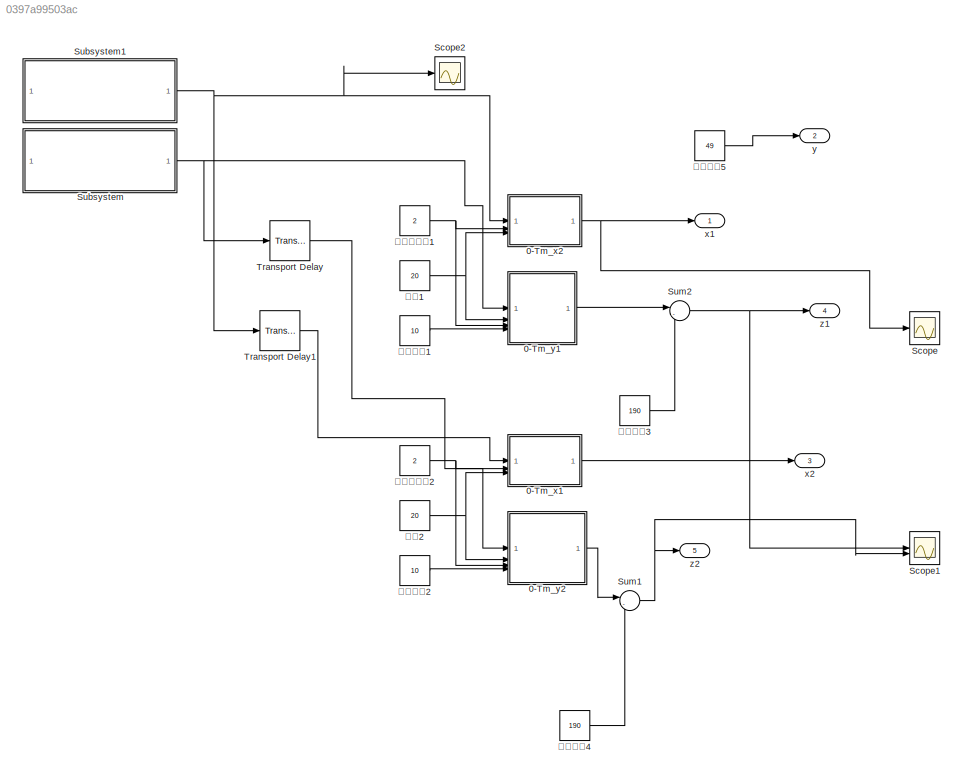
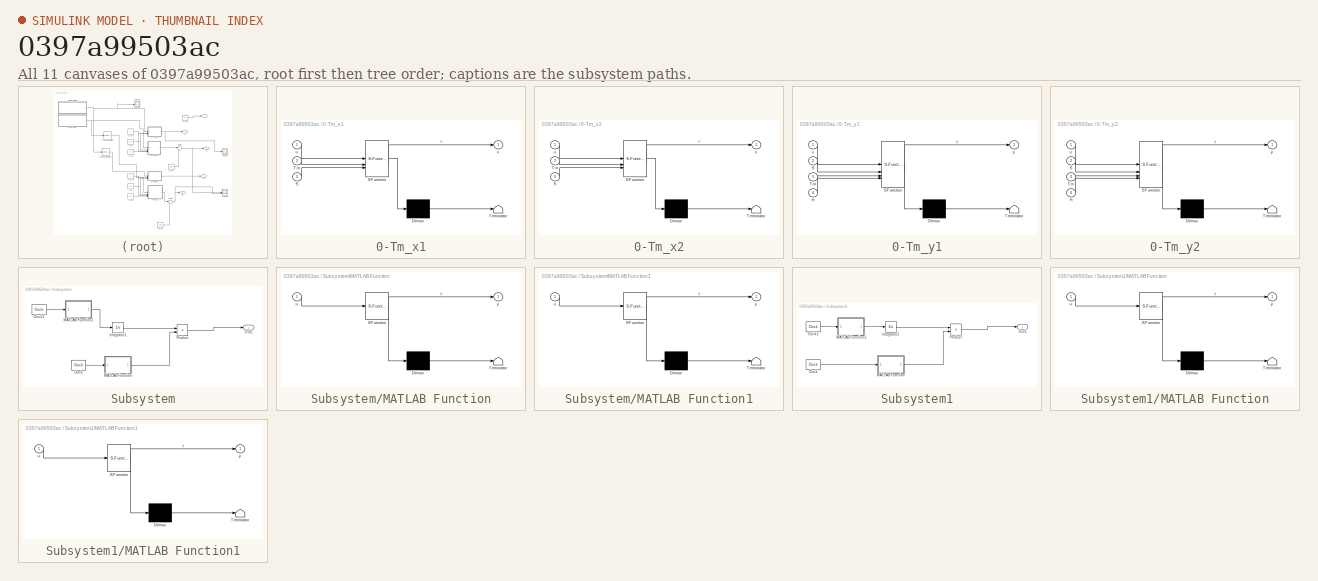
[diagram: thumbnail index - all 11 canvases of the model, root first then tree order]
MODEL slx_0397a99503ac
KIND model
CONFIG AbsTol = auto
CONFIG EnableMultiTasking = off
CONFIG FixedStep = 0.001
CONFIG MaxStep = auto
CONFIG MinStep = auto
CONFIG RelTol = 1e-3
CONFIG SampleTimeConstraint = Unconstrained
CONFIG SolverName = FixedStepAuto
CONFIG StartTime = 0.0
CONFIG StopTime = 10.0
BLOCK [SubSystem] 0-Tm_x1
  ErrorFcn = Stateflow.Translate.translate
  PermitHierarchicalResolution = ExplicitOnly
  SFBlockType = MATLAB Function
  TreatAsAtomicUnit = on
BLOCK [Demux] 0-Tm_x1/ Demux 
  Outputs = 1
BLOCK [S-Function] 0-Tm_x1/ SFunction 
  EnableBusSupport = on
  FunctionName = sf_sfun
  PortCounts = [3 2]
  SFcnIsStateOwnerBlock = off
  SFunctionDeploymentMode = off
  Tag = Stateflow S-Function 5
BLOCK [Terminator] 0-Tm_x1/ Terminator 
BLOCK [Inport] 0-Tm_x1/S
  Port = 3
BLOCK [Inport] 0-Tm_x1/Tm
  Port = 2
BLOCK [Inport] 0-Tm_x1/u
BLOCK [Outport] 0-Tm_x1/x
  VectorParamsAs1DForOutWhenUnconnected = off
BLOCK [SubSystem] 0-Tm_x2
  ErrorFcn = Stateflow.Translate.translate
  PermitHierarchicalResolution = ExplicitOnly
  SFBlockType = MATLAB Function
  TreatAsAtomicUnit = on
BLOCK [Demux] 0-Tm_x2/ Demux 
  Outputs = 1
BLOCK [S-Function] 0-Tm_x2/ SFunction 
  EnableBusSupport = on
  FunctionName = sf_sfun
  PortCounts = [3 2]
  SFcnIsStateOwnerBlock = off
  SFunctionDeploymentMode = off
  Tag = Stateflow S-Function 7
BLOCK [Terminator] 0-Tm_x2/ Terminator 
BLOCK [Inport] 0-Tm_x2/S
  Port = 3
BLOCK [Inport] 0-Tm_x2/Tm
  Port = 2
BLOCK [Inport] 0-Tm_x2/u
BLOCK [Outport] 0-Tm_x2/x
  VectorParamsAs1DForOutWhenUnconnected = off
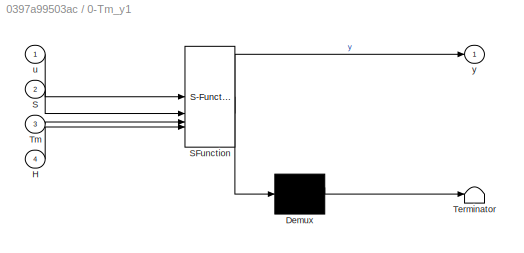
BLOCK [SubSystem] 0-Tm_y1
  ErrorFcn = Stateflow.Translate.translate
  PermitHierarchicalResolution = ExplicitOnly
  SFBlockType = MATLAB Function
  TreatAsAtomicUnit = on
BLOCK [Demux] 0-Tm_y1/ Demux 
  Outputs = 1
BLOCK [S-Function] 0-Tm_y1/ SFunction 
  EnableBusSupport = on
  FunctionName = sf_sfun
  PortCounts = [4 2]
  SFcnIsStateOwnerBlock = off
  SFunctionDeploymentMode = off
  Tag = Stateflow S-Function 6
BLOCK [Terminator] 0-Tm_y1/ Terminator 
BLOCK [Inport] 0-Tm_y1/H
  Port = 4
BLOCK [Inport] 0-Tm_y1/S
  Port = 2
BLOCK [Inport] 0-Tm_y1/Tm
  Port = 3
BLOCK [Inport] 0-Tm_y1/u
BLOCK [Outport] 0-Tm_y1/y
  VectorParamsAs1DForOutWhenUnconnected = off
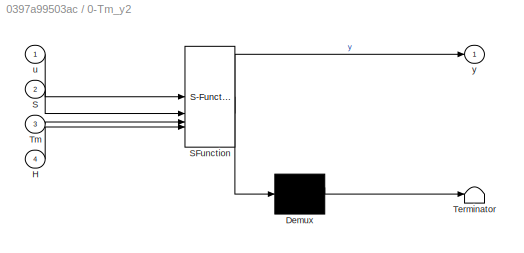
BLOCK [SubSystem] 0-Tm_y2
  ErrorFcn = Stateflow.Translate.translate
  PermitHierarchicalResolution = ExplicitOnly
  SFBlockType = MATLAB Function
  TreatAsAtomicUnit = on
BLOCK [Demux] 0-Tm_y2/ Demux 
  Outputs = 1
BLOCK [S-Function] 0-Tm_y2/ SFunction 
  EnableBusSupport = on
  FunctionName = sf_sfun
  PortCounts = [4 2]
  SFcnIsStateOwnerBlock = off
  SFunctionDeploymentMode = off
  Tag = Stateflow S-Function 8
BLOCK [Terminator] 0-Tm_y2/ Terminator 
BLOCK [Inport] 0-Tm_y2/H
  Port = 4
BLOCK [Inport] 0-Tm_y2/S
  Port = 2
BLOCK [Inport] 0-Tm_y2/Tm
  Port = 3
BLOCK [Inport] 0-Tm_y2/u
BLOCK [Outport] 0-Tm_y2/y
  VectorParamsAs1DForOutWhenUnconnected = off
BLOCK [Scope] Scope
  Floating = off
  NumInputPorts = 2
  ScopeSpecificationString = Simulink.scopes.TimeScopeBlockCfg('CurrentConfiguration', extmgr.ConfigurationSet(extmgr.Configuration('Core','General UI',true),extmgr.Configuration('Core','Source UI',true),extmgr.Configuration('Sources','WiredSimulink',true),extmgr.Configuration('Visuals','Time Domain',true,'SerializedDisplays',{struct('MinYLimReal','-2.5','MaxYLimReal','22.5','YLabelReal','','MinYLimMag','0.00000','MaxYLimMag'...<+1369ch>
BLOCK [Scope] Scope1
  Floating = off
  NumInputPorts = 2
  ScopeSpecificationString = Simulink.scopes.TimeScopeBlockCfg('CurrentConfiguration', extmgr.ConfigurationSet(extmgr.Configuration('Core','General UI',true),extmgr.Configuration('Core','Source UI',true),extmgr.Configuration('Sources','WiredSimulink',true,'DataLoggingVariableName','ScopeData1'),extmgr.Configuration('Visuals','Time Domain',true,'SerializedDisplays',{struct('MinYLimReal','178.75','MaxYLimReal','191.25','YLabelR...<+1415ch>
BLOCK [Scope] Scope2
  Floating = off
  NumInputPorts = 2
  ScopeSpecificationString = Simulink.scopes.TimeScopeBlockCfg('CurrentConfiguration', extmgr.ConfigurationSet(extmgr.Configuration('Core','General UI',true),extmgr.Configuration('Core','Source UI',true),extmgr.Configuration('Sources','WiredSimulink',true,'DataLoggingVariableName','ScopeData2'),extmgr.Configuration('Visuals','Time Domain',true,'SerializedDisplays',{struct('MinYLimReal','-2.5','MaxYLimReal','2.5','YLabelReal',...<+1407ch>
BLOCK [SubSystem] Subsystem
BLOCK [Reference] Subsystem/Clock  REF=simulink_extras/Flip Flops/Clock
  SourceBlock = simulink_extras/Flip Flops/Clock
  SourceType = Digital clock
BLOCK [Reference] Subsystem/Clock1  REF=simulink_extras/Flip Flops/Clock
  SourceBlock = simulink_extras/Flip Flops/Clock
  SourceType = Digital clock
BLOCK [Integrator] Subsystem/Integrator1
BLOCK [SubSystem] Subsystem/MATLAB Function
  ErrorFcn = Stateflow.Translate.translate
  PermitHierarchicalResolution = ExplicitOnly
  SFBlockType = MATLAB Function
  TreatAsAtomicUnit = on
BLOCK [Demux] Subsystem/MATLAB Function/ Demux 
  Outputs = 1
BLOCK [S-Function] Subsystem/MATLAB Function/ SFunction 
  EnableBusSupport = on
  FunctionName = sf_sfun
  PortCounts = [1 2]
  SFcnIsStateOwnerBlock = off
  SFunctionDeploymentMode = off
  Tag = Stateflow S-Function 17
BLOCK [Terminator] Subsystem/MATLAB Function/ Terminator 
BLOCK [Inport] Subsystem/MATLAB Function/u
BLOCK [Outport] Subsystem/MATLAB Function/y
  VectorParamsAs1DForOutWhenUnconnected = off
BLOCK [SubSystem] Subsystem/MATLAB Function1
  ErrorFcn = Stateflow.Translate.translate
  PermitHierarchicalResolution = ExplicitOnly
  SFBlockType = MATLAB Function
  TreatAsAtomicUnit = on
BLOCK [Demux] Subsystem/MATLAB Function1/ Demux 
  Outputs = 1
BLOCK [S-Function] Subsystem/MATLAB Function1/ SFunction 
  EnableBusSupport = on
  FunctionName = sf_sfun
  PortCounts = [1 2]
  SFcnIsStateOwnerBlock = off
  SFunctionDeploymentMode = off
  Tag = Stateflow S-Function 18
BLOCK [Terminator] Subsystem/MATLAB Function1/ Terminator 
BLOCK [Inport] Subsystem/MATLAB Function1/u
BLOCK [Outport] Subsystem/MATLAB Function1/y
  VectorParamsAs1DForOutWhenUnconnected = off
BLOCK [Outport] Subsystem/Out1
  VectorParamsAs1DForOutWhenUnconnected = off
BLOCK [Product] Subsystem/Product
BLOCK [SubSystem] Subsystem1
BLOCK [Reference] Subsystem1/Clock  REF=simulink_extras/Flip Flops/Clock
  SourceBlock = simulink_extras/Flip Flops/Clock
  SourceType = Digital clock
BLOCK [Reference] Subsystem1/Clock1  REF=simulink_extras/Flip Flops/Clock
  SourceBlock = simulink_extras/Flip Flops/Clock
  SourceType = Digital clock
BLOCK [Integrator] Subsystem1/Integrator1
BLOCK [SubSystem] Subsystem1/MATLAB Function
  ErrorFcn = Stateflow.Translate.translate
  PermitHierarchicalResolution = ExplicitOnly
  SFBlockType = MATLAB Function
  TreatAsAtomicUnit = on
BLOCK [Demux] Subsystem1/MATLAB Function/ Demux 
  Outputs = 1
BLOCK [S-Function] Subsystem1/MATLAB Function/ SFunction 
  EnableBusSupport = on
  FunctionName = sf_sfun
  PortCounts = [1 2]
  SFcnIsStateOwnerBlock = off
  SFunctionDeploymentMode = off
  Tag = Stateflow S-Function 19
BLOCK [Terminator] Subsystem1/MATLAB Function/ Terminator 
BLOCK [Inport] Subsystem1/MATLAB Function/u
BLOCK [Outport] Subsystem1/MATLAB Function/y
  VectorParamsAs1DForOutWhenUnconnected = off
BLOCK [SubSystem] Subsystem1/MATLAB Function1
  ErrorFcn = Stateflow.Translate.translate
  PermitHierarchicalResolution = ExplicitOnly
  SFBlockType = MATLAB Function
  TreatAsAtomicUnit = on
BLOCK [Demux] Subsystem1/MATLAB Function1/ Demux 
  Outputs = 1
BLOCK [S-Function] Subsystem1/MATLAB Function1/ SFunction 
  EnableBusSupport = on
  FunctionName = sf_sfun
  PortCounts = [1 2]
  SFcnIsStateOwnerBlock = off
  SFunctionDeploymentMode = off
  Tag = Stateflow S-Function 20
BLOCK [Terminator] Subsystem1/MATLAB Function1/ Terminator 
BLOCK [Inport] Subsystem1/MATLAB Function1/u
BLOCK [Outport] Subsystem1/MATLAB Function1/y
  VectorParamsAs1DForOutWhenUnconnected = off
BLOCK [Outport] Subsystem1/Out1
  VectorParamsAs1DForOutWhenUnconnected = off
BLOCK [Product] Subsystem1/Product
BLOCK [Sum] Sum1
  Inputs = |-+
BLOCK [Sum] Sum2
  Inputs = |-+
BLOCK [TransportDelay] Transport Delay
  DelayTime = 2
BLOCK [TransportDelay] Transport Delay1
  DelayTime = 2
BLOCK [Outport] x1
  VectorParamsAs1DForOutWhenUnconnected = off
BLOCK [Outport] x2
  Port = 3
  VectorParamsAs1DForOutWhenUnconnected = off
BLOCK [Outport] y
  Port = 2
  VectorParamsAs1DForOutWhenUnconnected = off
BLOCK [Outport] z1
  Port = 4
  VectorParamsAs1DForOutWhenUnconnected = off
BLOCK [Outport] z2
  Port = 5
  VectorParamsAs1DForOutWhenUnconnected = off
BLOCK [Constant] 抬腿高度1
  Value = 10
BLOCK [Constant] 抬腿高度2
  Value = 10
BLOCK [Constant] 抬腿高度3
  Value = 190
BLOCK [Constant] 抬腿高度4
  Value = 190
BLOCK [Constant] 抬腿高度5
  Value = 49
BLOCK [Constant] 摆动相周期1
  Value = 2
BLOCK [Constant] 摆动相周期2
  Value = 2
BLOCK [Constant] 步长1
  Value = 20
BLOCK [Constant] 步长2
  Value = 20
LINE 0-Tm_x1:1 -> x2:1
NET 0-Tm_x2:1 -> Scope:1, x1:1
LINE 0-Tm_y1:1 -> Sum2:1
LINE 0-Tm_y2:1 -> Sum1:1
LINE Subsystem/Clock1:1 -> Subsystem/MATLAB Function1:1
LINE Subsystem/Clock:1 -> Subsystem/MATLAB Function:1
LINE Subsystem/Integrator1:1 -> Subsystem/Product:1
LINE Subsystem/MATLAB Function1:1 -> Subsystem/Integrator1:1
LINE Subsystem/MATLAB Function:1 -> Subsystem/Product:2
LINE Subsystem/Product:1 -> Subsystem/Out1:1
LINE Subsystem1/Clock1:1 -> Subsystem1/MATLAB Function1:1
LINE Subsystem1/Clock:1 -> Subsystem1/MATLAB Function:1
LINE Subsystem1/Integrator1:1 -> Subsystem1/Product:1
LINE Subsystem1/MATLAB Function1:1 -> Subsystem1/Integrator1:1
LINE Subsystem1/MATLAB Function:1 -> Subsystem1/Product:2
LINE Subsystem1/Product:1 -> Subsystem1/Out1:1
NET Subsystem1:1 -> 0-Tm_x2:1, Scope2:1, Transport Delay1:1
NET Subsystem:1 -> 0-Tm_y1:1, Transport Delay:1
NET Sum1:1 -> Scope1:2, z2:1
NET Sum2:1 -> Scope1:1, z1:1
LINE Transport Delay1:1 -> 0-Tm_x1:1
LINE Transport Delay:1 -> 0-Tm_y2:1
LINE 抬腿高度1:1 -> 0-Tm_y1:4
LINE 抬腿高度2:1 -> 0-Tm_y2:4
LINE 抬腿高度3:1 -> Sum2:2
LINE 抬腿高度4:1 -> Sum1:2
LINE 抬腿高度5:1 -> y:1
NET 摆动相周期1:1 -> 0-Tm_x2:2, 0-Tm_y1:3
NET 摆动相周期2:1 -> 0-Tm_x1:2, 0-Tm_y2:3
NET 步长1:1 -> 0-Tm_x2:3, 0-Tm_y1:2
NET 步长2:1 -> 0-Tm_x1:3, 0-Tm_y2:2
note: NET lines group one-source signal fan-out (src -> all destinations, sorted); 1:1 wires keep LINE
CHART 0-Tm_x1 states=1 transitions=1
  STATE_LABEL 'eML_blk_kernel()'
  STATE_LABEL 'SCRIPT:\nfunction x = fcn(u,Tm,S)\n\n\nif u>0\n   \n    x =S*(u/Tm-1/(2*pi)*sin(2*pi*u/Tm));\nelse \n    u=-u;\n    x =S*(u/Tm-1/(2*pi)*sin(2*pi*u/Tm));\nend\n'
CHART 0-Tm_y1 states=1 transitions=1
  STATE_LABEL 'eML_blk_kernel()'
  STATE_LABEL 'SCRIPT:\nfunction y = fcn(u,S,Tm,H)\n\nn=4;\nif u>0\n    y=2*H*(u/Tm-1/(n*pi)*sin(n*pi*u/Tm)).*(u>=0&u<Tm/2)+2*H*(1-u/Tm+1/(n*pi)*sin(n*pi*u/Tm)).*(u>=Tm/2&u<Tm);;\nelse \n    y=0;\nend\n'
CHART 0-Tm_x2 states=1 transitions=1
  STATE_LABEL 'eML_blk_kernel()'
  STATE_LABEL 'SCRIPT:\nfunction x = fcn(u,Tm,S)\n\nif u>0\n    x =S*(u/Tm-1/(2*pi)*sin(2*pi*u/Tm));\nelse \n    u=-u;\n     x =S*(u/Tm-1/(2*pi)*sin(2*pi*u/Tm));\nend\n'
CHART 0-Tm_y2 states=1 transitions=1
  STATE_LABEL 'eML_blk_kernel()'
  STATE_LABEL 'SCRIPT:\nfunction y = fcn(u,S,Tm,H)\n\nn=4;\nif u>0\n    y=2*H*(u/Tm-1/(n*pi)*sin(n*pi*u/Tm)).*(u>=0&u<Tm/2)+2*H*(1-u/Tm+1/(n*pi)*sin(n*pi*u/Tm)).*(u>=Tm/2&u<Tm);;\nelse \n    y=0;\nend\n'
CHART Subsystem/MATLAB Function states=1 transitions=1
  STATE_LABEL 'eML_blk_kernel()'
  STATE_LABEL 'SCRIPT:\nfunction y = fcn(u)\nif u==0\n    y = -1;\nelse\n    y=1;\nend\nend\n'
CHART Subsystem/MATLAB Function1 states=1 transitions=1
  STATE_LABEL 'eML_blk_kernel()'
  STATE_LABEL 'SCRIPT:\nfunction y = fcn(u)\nif u==0\n    y = -1;\nelse\n    y=1;\nend\nend\n'
CHART Subsystem1/MATLAB Function states=1 transitions=1
  STATE_LABEL 'eML_blk_kernel()'
  STATE_LABEL 'SCRIPT:\nfunction y = fcn(u)\nif u==0\n    y = -1;\nelse\n    y=1;\nend\nend\n'
CHART Subsystem1/MATLAB Function1 states=1 transitions=1
  STATE_LABEL 'eML_blk_kernel()'
  STATE_LABEL 'SCRIPT:\nfunction y = fcn(u)\nif u==0\n    y = -1;\nelse\n    y=1;\nend\nend\n'
CHART  states=0 transitions=0
CHART  states=0 transitions=0
CHART  states=0 transitions=0
CHART  states=0 transitions=0
CHART  states=0 transitions=0
CHART  states=0 transitions=0
CHART  states=0 transitions=0
CHART  states=0 transitions=0
